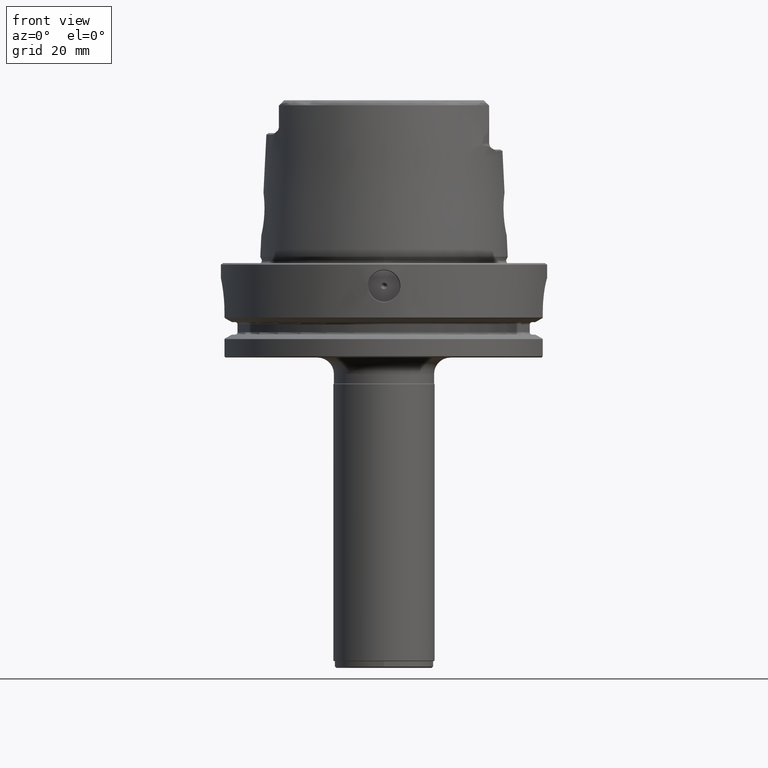
[diagram: clean part render]
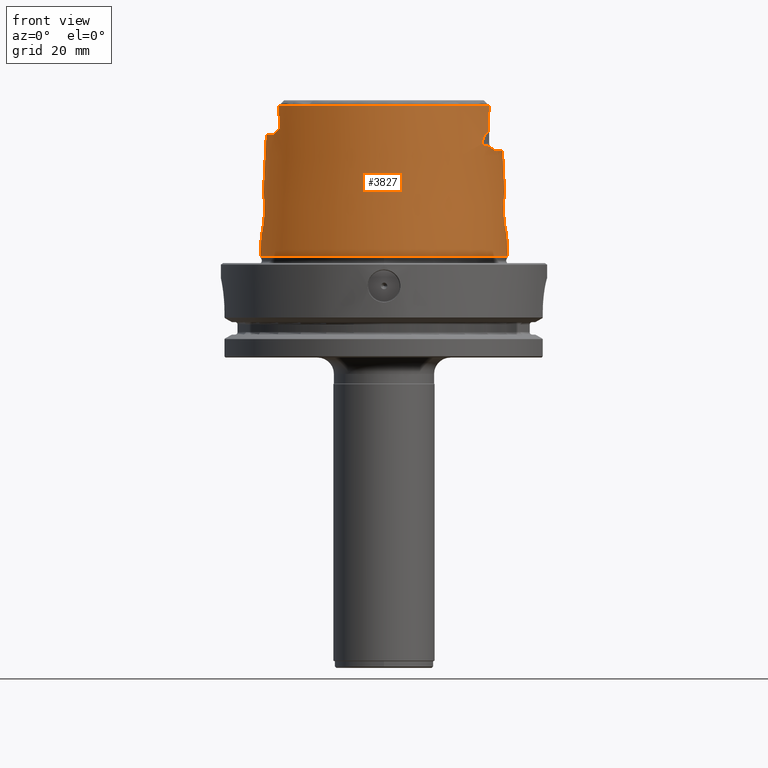
[diagram: same view with one face highlighted and labeled with its STEP entity id]
A machine part, front view. The second image highlights one B-rep face of the part: STEP entity #3827.
In plain terms, the highlighted conical surface has half-angle 2.868 deg.
Its self-contained STEP definition (entity closure, byte-faithful):
#1525=EDGE_CURVE('NONE',#2463,#3897,#4390,.T.);
#1549=EDGE_CURVE('NONE',#2049,#3999,#4416,.T.);
#1623=VERTEX_POINT('NONE',#4495);
#1697=VERTEX_POINT('NONE',#4577);
#1803=EDGE_CURVE('NONE',#2331,#2967,#4690,.T.);
#1965=EDGE_CURVE('NONE',#3629,#2661,#4874,.T.);
#2049=VERTEX_POINT('NONE',#4967);
#2081=EDGE_CURVE('NONE',#4185,#2661,#5000,.F.);
#2093=EDGE_CURVE('NONE',#3897,#3511,#5012,.T.);
#2109=EDGE_CURVE('NONE',#3629,#2875,#5029,.T.);
#2115=EDGE_CURVE('NONE',#2141,#2495,#5035,.T.);
#2141=VERTEX_POINT('NONE',#5065);
#2201=EDGE_CURVE('NONE',#2905,#2463,#5132,.T.);
#2271=EDGE_CURVE('NONE',#3733,#2759,#5210,.F.);
#2331=VERTEX_POINT('NONE',#5278);
#2463=VERTEX_POINT('NONE',#5424);
#2481=EDGE_CURVE('NONE',#3423,#2891,#5444,.T.);
#2495=VERTEX_POINT('NONE',#5458);
#2567=VERTEX_POINT('NONE',#5537);
#2573=VERTEX_POINT('NONE',#5543);
#2597=EDGE_CURVE('NONE',#3549,#2331,#5572,.F.);
#2659=VERTEX_POINT('NONE',#5640);
#2661=VERTEX_POINT('NONE',#5642);
#2695=EDGE_CURVE('NONE',#3999,#2567,#5679,.F.);
#2759=VERTEX_POINT('NONE',#5748);
#2821=EDGE_CURVE('NONE',#1697,#2495,#5817,.F.);
#2875=VERTEX_POINT('NONE',#5877);
#2889=EDGE_CURVE('NONE',#2659,#3577,#5891,.F.);
#2891=VERTEX_POINT('NONE',#5893);
#2905=VERTEX_POINT('NONE',#5909);
#2931=EDGE_CURVE('NONE',#3577,#1623,#5937,.T.);
#2967=VERTEX_POINT('',#5976);
#3017=EDGE_CURVE('NONE',#2659,#3733,#6029,.T.);
#3081=EDGE_CURVE('NONE',#1697,#4185,#6100,.F.);
#3131=EDGE_CURVE('NONE',#2759,#3511,#6156,.T.);
#3191=EDGE_CURVE('NONE',#2875,#2573,#6220,.T.);
#3265=EDGE_CURVE('NONE',#2049,#1623,#6303,.T.);
#3345=EDGE_CURVE('NONE',#3549,#2905,#6393,.T.);
#3423=VERTEX_POINT('NONE',#6482);
#3469=EDGE_CURVE('NONE',#2967,#2141,#6533,.T.);
#3511=VERTEX_POINT('NONE',#6579);
#3549=VERTEX_POINT('NONE',#6622);
#3577=VERTEX_POINT('NONE',#6652);
#3629=VERTEX_POINT('NONE',#6706);
#3733=VERTEX_POINT('NONE',#6821);
#3827=ADVANCED_FACE('NONE',(#6925),#6926,.T.);
#3897=VERTEX_POINT('NONE',#7001);
#3999=VERTEX_POINT('NONE',#7111);
#4127=EDGE_CURVE('NONE',#2573,#3423,#7252,.T.);
#4185=VERTEX_POINT('NONE',#7311);
#4217=EDGE_CURVE('NONE',#2567,#2891,#7349,.F.);
#4390=B_SPLINE_CURVE_WITH_KNOTS('',3,(#7650,#7651,#7652,#7653,#7654,#7655,#7656,#7657,#7658,#7659,#7660,#7661),.UNSPECIFIED.,.F.,.F.,(4,2,2,2,2,4),(0.0208417924711951,0.0221453250727731,0.0227970913735621,0.0234488576743511,0.0247523902759291,0.026055922877507),.UNSPECIFIED.);
#4416=CIRCLE('',#7736,36.2856620688635);
#4495=CARTESIAN_POINT('',(36.9285296284127,-2.93039099150789E-011,21.5362886168837));
#4577=CARTESIAN_POINT('',(-32.2196727564462,-15.1179594647321,48.25));
#4690=B_SPLINE_CURVE_WITH_KNOTS('',3,(#8401,#8402,#8403,#8404,#8405,#8406,#8407,#8408,#8409,#8410,#8411,#8412,#8413,#8414),.UNSPECIFIED.,.F.,.F.,(4,2,2,2,2,2,4),(5.0052763801595,5.83948911018609,6.67370184021267,7.50791457023926,8.34212730026584,10.010552760319,11.6789782203722),.UNSPECIFIED.);
#4874=B_SPLINE_CURVE_WITH_KNOTS('',3,(#8770,#8771,#8772,#8773,#8774,#8775,#8776,#8777,#8778,#8779,#8780,#8781,#8782,#8783,#8784,#8785,#8786,#8787,#8788,#8789,#8790,#8791),.UNSPECIFIED.,.F.,.F.,(4,2,2,2,2,2,2,2,2,2,4),(0.0,1.58306505567605,3.16613011135211,4.74919516702816,5.54072769486619,6.33226022270421,7.12379275054224,7.91532527838027,9.49839033405633,11.0814553897324,12.6645204454084),.UNSPECIFIED.);
#4967=CARTESIAN_POINT('',(36.2856620688635,0.0,34.3679251054852));
#5000=CIRCLE('',#9002,35.5860815135478);
#5012=LINE('',#9028,#9029);
#5029=B_SPLINE_CURVE_WITH_KNOTS('',3,(#9049,#9050,#9051,#9052,#9053,#9054,#9055,#9056,#9057,#9058,#9059,#9060,#9061,#9062,#9063,#9064,#9065,#9066,#9067,#9068,#9069,#9070,#9071,#9072,#9073,#9074,#9075,#9076,#9077,#9078,#9079,#9080,#9081,#9082,#9083,#9084,#9085,#9086,#9087,#9088,#9089,#9090,#9091,#9092,#9093,#9094),.UNSPECIFIED.,.F.,.F.,(4,2,2,2,2,2,2,2,2,2,2,2,2,2,2,2,2,2,2,2,2,2,4),(0.0,2.34415703240258,4.68831406480516,7.03247109720775,8.20454961340904,8.79058887150968,9.37662812961033,9.84126244311746,10.073579599871,10.3058967566246,10.4645881431318,10.5439338363854,10.623279529639,10.7026252228926,10.7819709161462,10.9406623026534,11.172979459407,11.4052966161606,11.8699309296677,12.4559701877684,13.042009445869,14.2140879620703,16.5582449944729),.UNSPECIFIED.);
#5035=B_SPLINE_CURVE_WITH_KNOTS('',3,(#9102,#9103,#9104,#9105,#9106,#9107,#9108,#9109,#9110,#9111,#9112,#9113,#9114,#9115,#9116,#9117,#9118,#9119,#9120,#9121,#9122,#9123),.UNSPECIFIED.,.F.,.F.,(4,2,2,2,2,2,2,2,2,2,4),(-6.84289873590706,-5.89083064943757,-5.02676918724643,-3.92988361325096,-3.15337129964142,-2.81436112317336,-2.6090290980842,-2.38761886029928,-2.0130105718823,-0.919950819094331,-0.0),.UNSPECIFIED.);
#5065=CARTESIAN_POINT('',(-33.2160543196187,-13.8919915979233,39.988325798194));
#5132=B_SPLINE_CURVE_WITH_KNOTS('',3,(#9347,#9348,#9349,#9350,#9351,#9352,#9353,#9354,#9355,#9356,#9357,#9358,#9359,#9360,#9361,#9362,#9363,#9364,#9365,#9366,#9367,#9368,#9369,#9370,#9371,#9372,#9373,#9374,#9375,#9376,#9377,#9378),.UNSPECIFIED.,.F.,.F.,(4,2,2,2,2,2,2,2,2,2,2,2,2,2,2,4),(0.00521470579561418,0.00619139871283799,0.00716809163006179,0.0091214774645094,0.0100981703817332,0.011074863298957,0.0120515562161808,0.0130282491334046,0.0140049420506284,0.0149816349678523,0.0159583278850761,0.0169350208022999,0.0179117137195237,0.0188884066367475,0.0198650995539713,0.0208417924711951),.UNSPECIFIED.);
#5210=CIRCLE('',#9527,37.9111386679071);
#5278=CARTESIAN_POINT('',(-34.1729956588683,-11.434124400822,39.3679251054853));
#5424=CARTESIAN_POINT('',(-37.1952217926338,-4.65909538051471,10.4114435226));
#5444=B_SPLINE_CURVE_WITH_KNOTS('',3,(#9983,#9984,#9985,#9986,#9987,#9988,#9989,#9990,#9991,#9992,#9993,#9994),.UNSPECIFIED.,.F.,.F.,(4,2,2,2,2,4),(-5.67367438398413,-4.67729505599695,-3.849427375931,-2.51016498469842,-1.09435098592964,-0.0),.UNSPECIFIED.);
#5458=CARTESIAN_POINT('',(-32.0309069691676,-16.252598941841,41.7));
#5537=CARTESIAN_POINT('',(33.6037090192422,-13.629373219723,34.8301937741542));
#5543=CARTESIAN_POINT('',(30.0433310036611,-20.1390699565836,36.7));
#5572=CIRCLE('',#10302,36.0351610668595);
#5640=CARTESIAN_POINT('',(37.5801911872421,2.65153614143268E-008,8.52912390264792));
#5642=CARTESIAN_POINT('',(32.1251868888049,-15.3082188659629,48.3315529895861));
#5679=B_SPLINE_CURVE_WITH_KNOTS('',3,(#10593,#10594,#10595,#10596,#10597,#10598,#10599,#10600,#10601,#10602,#10603,#10604,#10605,#10606),.UNSPECIFIED.,.F.,.F.,(4,2,2,2,2,2,4),(1.60499076718692,3.20998153437384,4.81497230156076,5.61746768515421,6.41996306874767,7.22245845234114,8.02495383593461),.UNSPECIFIED.);
#5748=CARTESIAN_POINT('',(-4.64277546216839E-015,-37.9111386679071,1.92341218857392));
#5817=B_SPLINE_CURVE_WITH_KNOTS('',3,(#10942,#10943,#10944,#10945,#10946,#10947,#10948,#10949,#10950,#10951,#10952,#10953,#10954,#10955,#10956,#10957),.UNSPECIFIED.,.F.,.F.,(4,2,2,2,2,2,2,4),(11.4052966161605,11.8699309296677,12.4559701877683,13.042009445869,14.2140879620703,16.5582449944728,18.9024020268754,21.246559059278),.UNSPECIFIED.);
#5877=CARTESIAN_POINT('',(31.6308064128983,-17.2237230750798,39.746973103506));
#5891=B_SPLINE_CURVE_WITH_KNOTS('',3,(#11050,#11051,#11052,#11053,#11054,#11055,#11056,#11057,#11058,#11059,#11060,#11061,#11062,#11063),.UNSPECIFIED.,.F.,.F.,(4,2,2,2,2,2,4),(0.0,0.629890351752867,1.68948931811184,4.16776439677398,6.17088583353832,6.61218044993934,7.04899958202409),.UNSPECIFIED.);
#5893=CARTESIAN_POINT('',(33.5871537530909,-13.6679057063271,34.846852915629));
#5909=CARTESIAN_POINT('',(-36.9285242983376,2.27392948830914E-011,21.5363950051821));
#5937=B_SPLINE_CURVE_WITH_KNOTS('',3,(#11133,#11134,#11135,#11136,#11137,#11138,#11139,#11140,#11141,#11142,#11143,#11144,#11145,#11146,#11147,#11148,#11149,#11150,#11151,#11152,#11153,#11154,#11155,#11156),.UNSPECIFIED.,.F.,.F.,(4,2,2,2,2,2,2,2,2,2,2,4),(-17.6411342288842,-15.4290898218257,-13.4580118250188,-11.3131156365418,-10.0994296296833,-8.87072651096078,-7.60499552356087,-5.06276487883739,-2.42908025110348,-0.989810984298572,-0.654223287868975,-0.0),.UNSPECIFIED.);
#5976=CARTESIAN_POINT('',(-33.3655922804173,-13.5498880853482,39.830754487126));
#6029=LINE('',#11385,#11386);
#6100=B_SPLINE_CURVE_WITH_KNOTS('',3,(#11718,#11719,#11720,#11721,#11722,#11723,#11724,#11725,#11726,#11727,#11728,#11729,#11730,#11731,#11732,#11733,#11734,#11735,#11736,#11737,#11738,#11739),.UNSPECIFIED.,.F.,.F.,(4,2,2,2,2,2,2,2,2,2,4),(0.0,1.58306505567606,3.16613011135212,4.74919516702817,5.5407276948662,6.33226022270423,7.12379275054226,7.91532527838029,9.49839033405634,11.0814553897324,12.6645204454084),.UNSPECIFIED.);
#6156=CIRCLE('',#11982,37.9111386679071);
#6220=(B_SPLINE_CURVE(2,(#12159,#12160,#12161),.UNSPECIFIED.,.F.,.F.)B_SPLINE_CURVE_WITH_KNOTS((3,3),(5.84554102192054,10.7629590125051),.UNSPECIFIED.)RATIONAL_B_SPLINE_CURVE((1.00299734066661,1.00299734066661,1.0008762416997))BOUNDED_CURVE()REPRESENTATION_ITEM('')GEOMETRIC_REPRESENTATION_ITEM()CURVE());
#6303=LINE('',#12353,#12354);
#6393=LINE('',#12547,#12548);
#6482=CARTESIAN_POINT('',(31.801730307811,-17.3167951831525,35.8623347892126));
#6533=B_SPLINE_CURVE_WITH_KNOTS('',3,(#12870,#12871,#12872,#12873,#12874,#12875,#12876,#12877,#12878,#12879,#12880,#12881,#12882,#12883),.UNSPECIFIED.,.F.,.F.,(4,2,2,2,2,2,4),(5.0052763801595,5.83948911018609,6.67370184021267,7.50791457023926,8.34212730026584,10.010552760319,11.6789782203722),.UNSPECIFIED.);
#6579=CARTESIAN_POINT('',(-37.9111386679071,-4.64277546216839E-015,1.92341218857392));
#6622=CARTESIAN_POINT('',(-36.0351610668595,-4.41303446572888E-015,39.3679251054852));
#6652=CARTESIAN_POINT('',(37.195340900871,-4.65836910333465,10.410886171705));
#6706=CARTESIAN_POINT('',(32.2196727564462,-15.1179594647321,48.25));
#6821=CARTESIAN_POINT('',(37.9111386679071,0.0,1.92341218857392));
#6925=FACE_OUTER_BOUND('',#13908,.T.);
#6926=CONICAL_SURFACE('',#13909,35.5024919839679,0.0500583457465974);
#7001=CARTESIAN_POINT('',(-37.5801869682553,-3.07468724688575E-014,8.52920811362393));
#7111=CARTESIAN_POINT('',(34.4105516847215,-11.513609535192,34.3679251054854));
#7252=B_SPLINE_CURVE_WITH_KNOTS('',3,(#14842,#14843,#14844,#14845,#14846,#14847,#14848,#14849,#14850,#14851,#14852,#14853,#14854,#14855,#14856,#14857,#14858,#14859,#14860,#14861,#14862,#14863,#14864,#14865,#14866,#14867,#14868,#14869,#14870,#14871,#14872,#14873,#14874,#14875,#14876,#14877,#14878,#14879,#14880),.UNSPECIFIED.,.F.,.F.,(4,2,2,2,2,2,2,2,2,3,2,2,2,2,2,2,2,2,4),(-5.43231215689413,-4.39312295345098,-3.35393375000782,-2.31474454656467,-1.27555534312152,-0.565551517892807,-0.300129038584641,-0.150064519292322,-0.0750322596461608,0.0,0.0748138199023548,0.14962763980471,0.299255279609419,0.564005836940279,1.27366500317539,2.31450828041214,3.35535155764889,4.39619483488565,5.4370381121224),.UNSPECIFIED.);
#7311=CARTESIAN_POINT('',(-32.125186888805,-15.3082188659629,48.3315529895861));
#7349=B_SPLINE_CURVE_WITH_KNOTS('',3,(#15150,#15151,#15152,#15153,#15154,#15155,#15156,#15157,#15158,#15159,#15160,#15161,#15162,#15163,#15164,#15165,#15166,#15167,#15168,#15169,#15170,#15171),.UNSPECIFIED.,.F.,.F.,(4,2,2,2,2,2,2,2,2,2,4),(0.0,1.61176026456654,3.22352052913309,4.83528079369963,5.6411609259829,6.44704105826617,7.25292119054944,8.05880132283271,9.67056158739925,11.2823218519658,12.8940821165323),.UNSPECIFIED.);
#7650=CARTESIAN_POINT('',(-37.1952217926338,-4.65909538051471,10.4114435226));
#7651=CARTESIAN_POINT('',(-37.2486388249857,-4.35250267938216,10.1141066038703));
#7652=CARTESIAN_POINT('',(-37.2998989822701,-4.01930626070039,9.84880535737677));
#7653=CARTESIAN_POINT('',(-37.3704227943637,-3.47972451129225,9.49817548600181));
#7654=CARTESIAN_POINT('',(-37.3929679691485,-3.29216368169054,9.3887824123342));
#7655=CARTESIAN_POINT('',(-37.4346066111714,-2.91032994060368,9.19009814341007));
#7656=CARTESIAN_POINT('',(-37.4537700046798,-2.71569533342596,9.10043545352474));
#7657=CARTESIAN_POINT('',(-37.5058149607484,-2.12083772034594,8.85984426427034));
#7658=CARTESIAN_POINT('',(-37.5332768841866,-1.70977402423177,8.73701282411846));
#7659=CARTESIAN_POINT('',(-37.5707776768846,-0.857002626764355,8.57031949885367));
#7660=CARTESIAN_POINT('',(-37.5801860767998,-0.428739909303223,8.52922590707623));
#7661=CARTESIAN_POINT('',(-37.5801869682553,-3.07468724688575E-014,8.52920811362393));
#7736=AXIS2_PLACEMENT_3D('',#15502,#15503,#15504);
#8401=CARTESIAN_POINT('',(-34.6503733990783,-9.84761532789534,39.6196985624674));
#8402=CARTESIAN_POINT('',(-34.5797398803428,-10.1110444886116,39.5384284118318));
#8403=CARTESIAN_POINT('',(-34.5045758011916,-10.3757744395605,39.4750758324253));
#8404=CARTESIAN_POINT('',(-34.3453236091409,-10.9054608100818,39.3897994958596));
#8405=CARTESIAN_POINT('',(-34.2612288534249,-11.1704231790359,39.3679251054853));
#8406=CARTESIAN_POINT('',(-34.0847624643117,-11.6978256226081,39.3679251054853));
#8407=CARTESIAN_POINT('',(-33.9924651882287,-11.9600434666393,39.3897994958596));
#8408=CARTESIAN_POINT('',(-33.8008764285146,-12.4789101729718,39.4750758324253));
#8409=CARTESIAN_POINT('',(-33.7015866696454,-12.7355677844072,39.5384284118318));
#8410=CARTESIAN_POINT('',(-33.3952110990648,-13.4942443689365,39.7822388637388));
#8411=CARTESIAN_POINT('',(-33.1794902350043,-13.9851641620033,40.0164818746948));
#8412=CARTESIAN_POINT('',(-32.7356744031813,-14.9279621567223,40.569699883608));
#8413=CARTESIAN_POINT('',(-32.5073236092114,-15.3804658351456,40.8884518929488));
#8414=CARTESIAN_POINT('',(-32.2784021736174,-15.8097447069369,41.2230021294701));
#8770=CARTESIAN_POINT('',(33.7339762751437,-11.6946010568866,45.9865));
#8771=CARTESIAN_POINT('',(33.5803302628998,-12.0897501399859,46.3006736808993));
#8772=CARTESIAN_POINT('',(33.4106393354955,-12.5067332668701,46.6223357399298));
#8773=CARTESIAN_POINT('',(33.042878371019,-13.3657392767772,47.2421360481048));
#8774=CARTESIAN_POINT('',(32.844869659882,-13.8076668571997,47.5404427522905));
#8775=CARTESIAN_POINT('',(32.4241149747544,-14.7051773373786,48.0649526217705));
#8776=CARTESIAN_POINT('',(32.201251402634,-15.161110632227,48.291019016915));
#8777=CARTESIAN_POINT('',(31.8507832689869,-15.8511196219706,48.5293915229892));
#8778=CARTESIAN_POINT('',(31.7312337298668,-16.0822294155288,48.5919670123731));
#8779=CARTESIAN_POINT('',(31.4874028254348,-16.5454313087874,48.6765473988469));
#8780=CARTESIAN_POINT('',(31.3631169806518,-16.7775357303014,48.6984718827265));
#8781=CARTESIAN_POINT('',(31.1107648324425,-17.240972230824,48.6984718827265));
#8782=CARTESIAN_POINT('',(30.9832387270621,-17.4713122537169,48.6765473988469));
#8783=CARTESIAN_POINT('',(30.726459954548,-17.9274637262133,48.5919670123731));
#8784=CARTESIAN_POINT('',(30.5971993678541,-18.1532856244204,48.5293915229892));
#8785=CARTESIAN_POINT('',(30.207767898572,-18.8220781553011,48.291019016915));
#8786=CARTESIAN_POINT('',(29.9457176166201,-19.2566733587474,48.0649526217705));
#8787=CARTESIAN_POINT('',(29.4201257437401,-20.097097507764,47.5404427522905));
#8788=CARTESIAN_POINT('',(29.1563536353547,-20.5032153611787,47.2421360481048));
#8789=CARTESIAN_POINT('',(28.634350198565,-21.2782326926165,46.6223357399298));
#8790=CARTESIAN_POINT('',(28.3761656471275,-21.6470289457814,46.3006736808993));
#8791=CARTESIAN_POINT('',(28.1276153020766,-21.9905003724354,45.9865));
#9002=AXIS2_PLACEMENT_3D('',#16133,#16134,#16135);
#9028=CARTESIAN_POINT('',(-35.5024919839679,-4.34780131699209E-015,50.0));
#9029=VECTOR('',#16140,1000.0);
#9049=CARTESIAN_POINT('',(32.2247236023161,-14.8380619118634,50.5135));
#9050=CARTESIAN_POINT('',(32.2256907240325,-14.9289256081434,49.7374159643922));
#9051=CARTESIAN_POINT('',(32.2242624330982,-15.0288203689247,48.9238254194878));
#9052=CARTESIAN_POINT('',(32.2130696003954,-15.2482895070886,47.2631124542076));
#9053=CARTESIAN_POINT('',(32.2033753603093,-15.3677371102914,46.4159728095626));
#9054=CARTESIAN_POINT('',(32.1701934482504,-15.631317904829,44.7301033574888));
#9055=CARTESIAN_POINT('',(32.1471032210817,-15.7746348409423,43.892091042657));
#9056=CARTESIAN_POINT('',(32.0927822846967,-16.0213960027107,42.6733806215703));
#9057=CARTESIAN_POINT('',(32.0713889125366,-16.1089369693729,42.2736933994119));
#9058=CARTESIAN_POINT('',(32.0306149312746,-16.2545341034932,41.6883988868358));
#9059=CARTESIAN_POINT('',(32.0155572968355,-16.3054786677201,41.4957032374411));
#9060=CARTESIAN_POINT('',(31.9810225092506,-16.4147887202822,41.1162134868477));
#9061=CARTESIAN_POINT('',(31.9616212518765,-16.4730203412576,40.9293739360529));
#9062=CARTESIAN_POINT('',(31.9199181859509,-16.5892664236716,40.6016470379574));
#9063=CARTESIAN_POINT('',(31.8971983000735,-16.6500241580358,40.4444132248573));
#9064=CARTESIAN_POINT('',(31.8543625567311,-16.7558774719474,40.2198969165074));
#9065=CARTESIAN_POINT('',(31.8386260189882,-16.7936046173927,40.1470089919297));
#9066=CARTESIAN_POINT('',(31.8031176270881,-16.8753394160091,40.0105839022188));
#9067=CARTESIAN_POINT('',(31.7834435969753,-16.9191824419358,39.9469227398248));
#9068=CARTESIAN_POINT('',(31.7444240027321,-17.002072667545,39.8542178215956));
#9069=CARTESIAN_POINT('',(31.7250950313395,-17.04210726168,39.8167698115671));
#9070=CARTESIAN_POINT('',(31.6920417879065,-17.1077076593979,39.7763394048967));
#9071=CARTESIAN_POINT('',(31.6803349558617,-17.130525915116,39.7654544515662));
#9072=CARTESIAN_POINT('',(31.6560434406159,-17.1769171408401,39.7507603581985));
#9073=CARTESIAN_POINT('',(31.6434546967271,-17.2004949138105,39.746973103506));
#9074=CARTESIAN_POINT('',(31.6181581290695,-17.246951236349,39.746973103506));
#9075=CARTESIAN_POINT('',(31.6051838693672,-17.2703190868303,39.7507603581987));
#9076=CARTESIAN_POINT('',(31.5793966331184,-17.3158958570512,39.7654544515663));
#9077=CARTESIAN_POINT('',(31.5665818255071,-17.3381107938378,39.7763394048966));
#9078=CARTESIAN_POINT('',(31.5294133270813,-17.4014703377673,39.816769811567));
#9079=CARTESIAN_POINT('',(31.506272860764,-17.4394294826637,39.8542178215957));
#9080=CARTESIAN_POINT('',(31.4578185301174,-17.5171822708968,39.9469227398249));
#9081=CARTESIAN_POINT('',(31.4316662645932,-17.5574977442445,40.0105839022188));
#9082=CARTESIAN_POINT('',(31.3822772719369,-17.6316742270716,40.1470089919297));
#9083=CARTESIAN_POINT('',(31.3591257493759,-17.6653637377047,40.2198969165074));
#9084=CARTESIAN_POINT('',(31.2934534095921,-17.758781984108,40.4444132248574));
#9085=CARTESIAN_POINT('',(31.2547457244044,-17.8108339831739,40.6016470379575));
#9086=CARTESIAN_POINT('',(31.1797290017497,-17.9089399906676,40.9293739360529));
#9087=CARTESIAN_POINT('',(31.1413425044177,-17.956833698936,41.1162134868478));
#9088=CARTESIAN_POINT('',(31.0682623901353,-18.0451549083996,41.4957032374412));
#9089=CARTESIAN_POINT('',(31.0336400383194,-18.0854460207436,41.6883988868358));
#9090=CARTESIAN_POINT('',(30.9334647048801,-18.1986977120436,42.273693399412));
#9091=CARTESIAN_POINT('',(30.8715396941237,-18.2641682417448,42.6733806215704));
#9092=CARTESIAN_POINT('',(30.6937386397034,-18.4436915553674,43.8920910426571));
#9093=CARTESIAN_POINT('',(30.5858833029696,-18.5408518821765,44.7301033574889));
#9094=CARTESIAN_POINT('',(30.484183547803,-18.6262985230309,45.5730380835258));
#9102=CARTESIAN_POINT('',(-33.8163611038049,-12.3855902577243,39.8066697986275));
#9103=CARTESIAN_POINT('',(-33.6598706662297,-12.8165455406989,39.7813418429515));
#9104=CARTESIAN_POINT('',(-33.4897259821893,-13.2479492800867,39.8292891836146));
#9105=CARTESIAN_POINT('',(-33.1553662443336,-14.03839111159,40.0176180337631));
#9106=CARTESIAN_POINT('',(-32.9895181874325,-14.4064871271688,40.1506942649248));
#9107=CARTESIAN_POINT('',(-32.6157675931178,-15.1930699233325,40.5188473253215));
#9108=CARTESIAN_POINT('',(-32.4180280991995,-15.5776340639753,40.7620038870649));
#9109=CARTESIAN_POINT('',(-32.1795171461644,-16.0222933880102,41.1263112059934));
#9110=CARTESIAN_POINT('',(-32.1168267428756,-16.1324498467719,41.2513629282608));
#9111=CARTESIAN_POINT('',(-32.0624316996859,-16.2228152178681,41.4076851045293));
#9112=CARTESIAN_POINT('',(-32.0479980487044,-16.2455223107701,41.4597009026633));
#9113=CARTESIAN_POINT('',(-32.0334377031663,-16.2643350669051,41.548954409899));
#9114=CARTESIAN_POINT('',(-32.0300491151502,-16.2672334418799,41.5830460226567));
#9115=CARTESIAN_POINT('',(-32.0278854917605,-16.2634932803523,41.6553539130495));
#9116=CARTESIAN_POINT('',(-32.0295507696801,-16.2561867355025,41.6917727957016));
#9117=CARTESIAN_POINT('',(-32.0399859780211,-16.2250178319587,41.7873861488941));
#9118=CARTESIAN_POINT('',(-32.0535143400659,-16.1913242968282,41.850670479357));
#9119=CARTESIAN_POINT('',(-32.1379967694655,-15.9935654939449,42.1187214209992));
#9120=CARTESIAN_POINT('',(-32.2588266987069,-15.7261604110261,42.3323328743513));
#9121=CARTESIAN_POINT('',(-32.4845979993151,-15.2121819900255,42.6820870256082));
#9122=CARTESIAN_POINT('',(-32.5949934471435,-14.9564837908699,42.8325348390015));
#9123=CARTESIAN_POINT('',(-32.7026638048829,-14.7009654732895,42.9635));
#9347=CARTESIAN_POINT('',(-36.9285242983376,2.27392948830914E-011,21.5363950051821));
#9348=CARTESIAN_POINT('',(-36.9285147742134,-0.322585043516834,21.5365851067046));
#9349=CARTESIAN_POINT('',(-36.9254544992426,-0.642865258560233,21.5133189839065));
#9350=CARTESIAN_POINT('',(-36.9135333182269,-1.27891634284436,21.4208736356383));
#9351=CARTESIAN_POINT('',(-36.9045975446748,-1.5965667471683,21.3511222483454));
#9352=CARTESIAN_POINT('',(-36.8702648124326,-2.5294011651864,21.0740835511538));
#9353=CARTESIAN_POINT('',(-36.8379059418393,-3.11232912928965,20.8056878655316));
#9354=CARTESIAN_POINT('',(-36.7834918757072,-3.92821745386306,20.2764646564867));
#9355=CARTESIAN_POINT('',(-36.7646179245996,-4.18685916876153,20.0804118692924));
#9356=CARTESIAN_POINT('',(-36.7279826121821,-4.66837458129406,19.6566680645168));
#9357=CARTESIAN_POINT('',(-36.7101284426284,-4.89270460581787,19.4278562362392));
#9358=CARTESIAN_POINT('',(-36.6776162273941,-5.30639224035047,18.9339974510275));
#9359=CARTESIAN_POINT('',(-36.6628320905496,-5.4970328923196,18.6674093573033));
#9360=CARTESIAN_POINT('',(-36.6389196056664,-5.83250555675165,18.1163054576183));
#9361=CARTESIAN_POINT('',(-36.6296482348251,-5.97900512211284,17.8302581097273));
#9362=CARTESIAN_POINT('',(-36.617862265488,-6.2303265848342,17.2375244388059));
#9363=CARTESIAN_POINT('',(-36.6153662780847,-6.33576415576879,16.9282319189034));
#9364=CARTESIAN_POINT('',(-36.6187462933809,-6.49852016024882,16.301006683204));
#9365=CARTESIAN_POINT('',(-36.6245443541459,-6.55589768477993,15.9846577313481));
#9366=CARTESIAN_POINT('',(-36.6451549410056,-6.621940127594,15.3464261941594));
#9367=CARTESIAN_POINT('',(-36.6600344064283,-6.6302567148889,15.0245041131926));
#9368=CARTESIAN_POINT('',(-36.6995092885388,-6.59477296365154,14.37474172719));
#9369=CARTESIAN_POINT('',(-36.7235476652287,-6.55179621667163,14.054821603083));
#9370=CARTESIAN_POINT('',(-36.7787708280522,-6.41981856255826,13.427160536593));
#9371=CARTESIAN_POINT('',(-36.8099933866043,-6.33076625894953,13.1188780946788));
#9372=CARTESIAN_POINT('',(-36.8786102693789,-6.10651711529961,12.5133187036147));
#9373=CARTESIAN_POINT('',(-36.9157477739356,-5.97194167247253,12.2186985765092));
#9374=CARTESIAN_POINT('',(-36.9925519588339,-5.66480112337008,11.6578377042905));
#9375=CARTESIAN_POINT('',(-37.0324473943168,-5.49152711263608,11.3896017177381));
#9376=CARTESIAN_POINT('',(-37.1136849453703,-5.104179228592,10.8781456308138));
#9377=CARTESIAN_POINT('',(-37.1551982158594,-4.88881492823152,10.6342280254202));
#9378=CARTESIAN_POINT('',(-37.1952217926338,-4.65909538051471,10.4114435226));
#9527=AXIS2_PLACEMENT_3D('',#16398,#16399,#16400);
#9983=CARTESIAN_POINT('',(30.9522661967315,-18.8322059505749,35.4563899925386));
#9984=CARTESIAN_POINT('',(31.1589655353675,-18.4790027847723,35.5962002864488));
#9985=CARTESIAN_POINT('',(31.3523834306067,-18.134512480044,35.7324272616763));
#9986=CARTESIAN_POINT('',(31.6830149857773,-17.5354634711534,35.8656251520568));
#9987=CARTESIAN_POINT('',(31.8155098072753,-17.2923692700177,35.8785073567843));
#9988=CARTESIAN_POINT('',(32.1888857661442,-16.6018101801224,35.7830557870478));
#9989=CARTESIAN_POINT('',(32.4249120479045,-16.1602169407393,35.6002934158357));
#9990=CARTESIAN_POINT('',(32.9724809457264,-15.0631638256675,35.1832629723362));
#9991=CARTESIAN_POINT('',(33.3072109018234,-14.3517373859816,34.925571050556));
#9992=CARTESIAN_POINT('',(33.8776218051388,-12.9595126432996,34.7633424316689));
#9993=CARTESIAN_POINT('',(34.0439688355262,-12.4967493680256,34.8126681953386));
#9994=CARTESIAN_POINT('',(34.1604261724819,-12.1587327556784,34.8851221703266));
#10302=AXIS2_PLACEMENT_3D('',#16835,#16836,#16837);
#10593=CARTESIAN_POINT('',(32.5906995491911,-15.7527574515484,36.1154928359785));
#10594=CARTESIAN_POINT('',(32.810007981217,-15.3355818273322,35.7980191797133));
#10595=CARTESIAN_POINT('',(33.029039135685,-14.8958797834344,35.4962905409484));
#10596=CARTESIAN_POINT('',(33.4551672369239,-13.9804079938418,34.9743658943531));
#10597=CARTESIAN_POINT('',(33.6625281684807,-13.5039628429025,34.754412190217));
#10598=CARTESIAN_POINT('',(33.9571295291027,-12.769334080357,34.5264551047523));
#10599=CARTESIAN_POINT('',(34.0526207259539,-12.5210928582956,34.4674324760274));
#10600=CARTESIAN_POINT('',(34.2368933570909,-12.0200716859099,34.3881469732236));
#10601=CARTESIAN_POINT('',(34.3256731774023,-11.7672846536772,34.3679251054854));
#10602=CARTESIAN_POINT('',(34.4954301920408,-11.2599344167069,34.3679251054854));
#10603=CARTESIAN_POINT('',(34.5766585086202,-11.0046206866703,34.3881469732236));
#10604=CARTESIAN_POINT('',(34.7310139103232,-10.4935893493435,34.4674324760274));
#10605=CARTESIAN_POINT('',(34.8041465464232,-10.2378670575039,34.5264551047523));
#10606=CARTESIAN_POINT('',(34.8730903857027,-9.98320167712583,34.6024407999072));
#10942=CARTESIAN_POINT('',(-31.8686411378272,-16.7205930340078,40.2947356859755));
#10943=CARTESIAN_POINT('',(-31.8971983000735,-16.6500241580358,40.4444132248574));
#10944=CARTESIAN_POINT('',(-31.9199181859509,-16.5892664236716,40.6016470379575));
#10945=CARTESIAN_POINT('',(-31.9616212518765,-16.4730203412576,40.9293739360529));
#10946=CARTESIAN_POINT('',(-31.9810225092507,-16.4147887202822,41.1162134868478));
#10947=CARTESIAN_POINT('',(-32.0155572968355,-16.3054786677201,41.4957032374412));
#10948=CARTESIAN_POINT('',(-32.0306149312746,-16.2545341034932,41.6883988868358));
#10949=CARTESIAN_POINT('',(-32.0713889125366,-16.1089369693729,42.2736933994119));
#10950=CARTESIAN_POINT('',(-32.0927822846967,-16.0213960027106,42.6733806215704));
#10951=CARTESIAN_POINT('',(-32.1471032210817,-15.7746348409423,43.8920910426571));
#10952=CARTESIAN_POINT('',(-32.1701934482504,-15.631317904829,44.7301033574889));
#10953=CARTESIAN_POINT('',(-32.2033753603093,-15.3677371102914,46.4159728095627));
#10954=CARTESIAN_POINT('',(-32.2130696003953,-15.2482895070886,47.2631124542077));
#10955=CARTESIAN_POINT('',(-32.2242624330982,-15.0288203689247,48.9238254194878));
#10956=CARTESIAN_POINT('',(-32.2256907240325,-14.9289256081434,49.7374159643922));
#10957=CARTESIAN_POINT('',(-32.2247236023161,-14.8380619118634,50.5135));
#11050=CARTESIAN_POINT('',(37.0688012363388,-5.31809143237596,11.160886171705));
#11051=CARTESIAN_POINT('',(37.0951569537268,-5.19319616973812,10.9941792428962));
#11052=CARTESIAN_POINT('',(37.1217025601764,-5.06025296253878,10.8335797638743));
#11053=CARTESIAN_POINT('',(37.1924788665782,-4.68312967124158,10.4213610338398));
#11054=CARTESIAN_POINT('',(37.2363285692048,-4.42489129435514,10.1832674004332));
#11055=CARTESIAN_POINT('',(37.3730894591823,-3.52038138867501,9.46978307616161));
#11056=CARTESIAN_POINT('',(37.4559477173731,-2.79693213270157,9.08723865148418));
#11057=CARTESIAN_POINT('',(37.5536068809776,-1.39842296672377,8.64448585693467));
#11058=CARTESIAN_POINT('',(37.578055986815,-0.746800531045384,8.53843316683009));
#11059=CARTESIAN_POINT('',(37.5804962343574,0.0555279745684775,8.52778799445345));
#11060=CARTESIAN_POINT('',(37.5798627541859,0.200150099296617,8.53059662793368));
#11061=CARTESIAN_POINT('',(37.5764694921086,0.48794350822894,8.54562094339463));
#11062=CARTESIAN_POINT('',(37.5737333474163,0.630800622701492,8.55772519148776));
#11063=CARTESIAN_POINT('',(37.5699678132039,0.773143429668704,8.57441411531482));
#11133=CARTESIAN_POINT('',(37.3377381728013,-3.72901933632514,9.66088617170497));
#11134=CARTESIAN_POINT('',(37.2756098554973,-4.1944272463635,9.97165008115049));
#11135=CARTESIAN_POINT('',(37.1936579293023,-4.70305191086631,10.3934706143772));
#11136=CARTESIAN_POINT('',(37.0147150012314,-5.58917936820387,11.4889803579278));
#11137=CARTESIAN_POINT('',(36.9311820786949,-5.92621107652187,12.0701085396141));
#11138=CARTESIAN_POINT('',(36.7803009573681,-6.43532568388207,13.3626506196867));
#11139=CARTESIAN_POINT('',(36.7152880059506,-6.5902382892534,14.0809506970854));
#11140=CARTESIAN_POINT('',(36.6497410076261,-6.63262407099091,15.2182481095697));
#11141=CARTESIAN_POINT('',(36.6338838356425,-6.60597734276853,15.6252129213796));
#11142=CARTESIAN_POINT('',(36.6161852711504,-6.47515263642218,16.4320616534702));
#11143=CARTESIAN_POINT('',(36.6145060770072,-6.37002164838146,16.831786234564));
#11144=CARTESIAN_POINT('',(36.6233366015812,-6.08376361246177,17.6161869422846));
#11145=CARTESIAN_POINT('',(36.634209582244,-5.90028775323406,18.0004641021514));
#11146=CARTESIAN_POINT('',(36.6807062908327,-5.24342040979507,19.0920141471211));
#11147=CARTESIAN_POINT('',(36.7297310747322,-4.67526182642856,19.7139339857104));
#11148=CARTESIAN_POINT('',(36.8283930401346,-3.29185518476927,20.7386139826581));
#11149=CARTESIAN_POINT('',(36.87542579078,-2.48828182833036,21.118248429873));
#11150=CARTESIAN_POINT('',(36.9171706818242,-1.17207230052159,21.4502368771745));
#11151=CARTESIAN_POINT('',(36.926034136713,-0.695507234109717,21.5175750175267));
#11152=CARTESIAN_POINT('',(36.9285433321184,-0.103873920306435,21.536481070074));
#11153=CARTESIAN_POINT('',(36.9286514518808,0.00797736049252623,21.5372205283683));
#11154=CARTESIAN_POINT('',(36.927888995831,0.337864169491229,21.5310740827673));
#11155=CARTESIAN_POINT('',(36.9259880326088,0.555542770138407,21.5162879502002));
#11156=CARTESIAN_POINT('',(36.9227308745388,0.772111244612465,21.4909119084424));
#11385=CARTESIAN_POINT('',(35.5024919839679,0.0,50.0));
#11386=VECTOR('',#17279,1000.0);
#11718=CARTESIAN_POINT('',(-28.1276153020766,-21.9905003724354,45.9865));
#11719=CARTESIAN_POINT('',(-28.3761656471275,-21.6470289457814,46.3006736808993));
#11720=CARTESIAN_POINT('',(-28.634350198565,-21.2782326926165,46.6223357399298));
#11721=CARTESIAN_POINT('',(-29.1563536353547,-20.5032153611787,47.2421360481048));
#11722=CARTESIAN_POINT('',(-29.4201257437401,-20.097097507764,47.5404427522905));
#11723=CARTESIAN_POINT('',(-29.9457176166201,-19.2566733587474,48.0649526217705));
#11724=CARTESIAN_POINT('',(-30.207767898572,-18.8220781553012,48.291019016915));
#11725=CARTESIAN_POINT('',(-30.5971993678541,-18.1532856244205,48.5293915229892));
#11726=CARTESIAN_POINT('',(-30.726459954548,-17.9274637262133,48.5919670123731));
#11727=CARTESIAN_POINT('',(-30.9832387270621,-17.4713122537169,48.6765473988469));
#11728=CARTESIAN_POINT('',(-31.1107648324425,-17.240972230824,48.6984718827265));
#11729=CARTESIAN_POINT('',(-31.3631169806518,-16.7775357303014,48.6984718827265));
#11730=CARTESIAN_POINT('',(-31.4874028254348,-16.5454313087874,48.6765473988469));
#11731=CARTESIAN_POINT('',(-31.7312337298668,-16.0822294155288,48.5919670123731));
#11732=CARTESIAN_POINT('',(-31.8507832689869,-15.8511196219706,48.5293915229892));
#11733=CARTESIAN_POINT('',(-32.201251402634,-15.161110632227,48.291019016915));
#11734=CARTESIAN_POINT('',(-32.4241149747544,-14.7051773373786,48.0649526217705));
#11735=CARTESIAN_POINT('',(-32.844869659882,-13.8076668571997,47.5404427522905));
#11736=CARTESIAN_POINT('',(-33.042878371019,-13.3657392767772,47.2421360481048));
#11737=CARTESIAN_POINT('',(-33.4106393354955,-12.5067332668701,46.6223357399298));
#11738=CARTESIAN_POINT('',(-33.5803302628998,-12.0897501399859,46.3006736808993));
#11739=CARTESIAN_POINT('',(-33.7339762751437,-11.6946010568866,45.9865));
#11982=AXIS2_PLACEMENT_3D('',#17415,#17416,#17417);
#12159=CARTESIAN_POINT('',(31.6308064128983,-17.2237230750798,39.7469731035058));
#12160=CARTESIAN_POINT('',(30.8387472732728,-18.6783138858964,39.7469731035058));
#12161=CARTESIAN_POINT('',(30.043331003659,-20.1390699565873,36.6999999999922));
#12353=CARTESIAN_POINT('',(35.5024919839679,0.0,50.0));
#12354=VECTOR('',#17583,1000.0);
#12547=CARTESIAN_POINT('',(-35.5024919839679,-4.34780131699209E-015,50.0));
#12548=VECTOR('',#17685,1000.0);
#12870=CARTESIAN_POINT('',(-34.6503733990783,-9.84761532789534,39.6196985624674));
#12871=CARTESIAN_POINT('',(-34.5797398803428,-10.1110444886116,39.5384284118318));
#12872=CARTESIAN_POINT('',(-34.5045758011916,-10.3757744395605,39.4750758324253));
#12873=CARTESIAN_POINT('',(-34.3453236091409,-10.9054608100818,39.3897994958596));
#12874=CARTESIAN_POINT('',(-34.2612288534249,-11.1704231790359,39.3679251054853));
#12875=CARTESIAN_POINT('',(-34.0847624643117,-11.6978256226081,39.3679251054853));
#12876=CARTESIAN_POINT('',(-33.9924651882287,-11.9600434666393,39.3897994958596));
#12877=CARTESIAN_POINT('',(-33.8008764285146,-12.4789101729718,39.4750758324253));
#12878=CARTESIAN_POINT('',(-33.7015866696454,-12.7355677844072,39.5384284118318));
#12879=CARTESIAN_POINT('',(-33.3952110990648,-13.4942443689365,39.7822388637388));
#12880=CARTESIAN_POINT('',(-33.1794902350043,-13.9851641620033,40.0164818746948));
#12881=CARTESIAN_POINT('',(-32.7356744031813,-14.9279621567223,40.569699883608));
#12882=CARTESIAN_POINT('',(-32.5073236092114,-15.3804658351456,40.8884518929488));
#12883=CARTESIAN_POINT('',(-32.2784021736174,-15.8097447069369,41.2230021294701));
#13908=EDGE_LOOP('',(#18302,#18303,#18304,#18305,#18306,#18307,#18308,#18309,#18310,#18311,#18312,#18313,#18314,#18315,#18316,#18317,#18318,#18319,#18320,#18321,#18322,#18323,#18324,#18325,#18326));
#13909=AXIS2_PLACEMENT_3D('',#18327,#18328,#18329);
#14842=CARTESIAN_POINT('',(32.7375489242368,-15.3198937745949,37.1796182043583));
#14843=CARTESIAN_POINT('',(32.5904531680332,-15.6263561087127,37.2462075653859));
#14844=CARTESIAN_POINT('',(32.4237858572188,-15.9649464583311,37.2924114751892));
#14845=CARTESIAN_POINT('',(32.0792387694258,-16.6400700015395,37.3509352300598));
#14846=CARTESIAN_POINT('',(31.9013546443824,-16.9766214365931,37.3630188052823));
#14847=CARTESIAN_POINT('',(31.5700459253319,-17.5850591076766,37.3630188052823));
#14848=CARTESIAN_POINT('',(31.3838685870463,-17.9170946917455,37.3509352300598));
#14849=CARTESIAN_POINT('',(31.0037278853064,-18.5728366693415,37.2924114751892));
#14850=CARTESIAN_POINT('',(30.8097515585647,-18.8965566131396,37.2462075653859));
#14851=CARTESIAN_POINT('',(30.5107951615265,-19.3844357237787,37.1341224458453));
#14852=CARTESIAN_POINT('',(30.3648641844985,-19.618372274436,37.0660437465003));
#14853=CARTESIAN_POINT('',(30.2053777607431,-19.8732874905081,36.9423517927262));
#14854=CARTESIAN_POINT('',(30.1547496565556,-19.9542091135091,36.8958723262834));
#14855=CARTESIAN_POINT('',(30.0950663378636,-20.0511489903868,36.8169951350487));
#14856=CARTESIAN_POINT('',(30.0730633455898,-20.0872718123513,36.7820285197066));
#14857=CARTESIAN_POINT('',(30.048988961288,-20.1287065436507,36.7214029467179));
#14858=CARTESIAN_POINT('',(30.0424520808913,-20.140398538469,36.6998298478793));
#14859=CARTESIAN_POINT('',(30.033929612106,-20.1572001497486,36.6542852141775));
#14860=CARTESIAN_POINT('',(30.0319430878513,-20.1623121583695,36.630314736957));
#14861=CARTESIAN_POINT('',(30.032982120007,-20.1630097253103,36.6053353136462));
#14862=CARTESIAN_POINT('',(30.0340181272516,-20.16370526144,36.5804286123732));
#14863=CARTESIAN_POINT('',(30.0379817475737,-20.159951179031,36.556527469421));
#14864=CARTESIAN_POINT('',(30.0502714574002,-20.1457101188509,36.5111552353928));
#14865=CARTESIAN_POINT('',(30.0585980857451,-20.1352211911831,36.4896849023126));
#14866=CARTESIAN_POINT('',(30.0877172956486,-20.0971373139208,36.4294295759862));
#14867=CARTESIAN_POINT('',(30.1126564340427,-20.0628978646987,36.394783246771));
#14868=CARTESIAN_POINT('',(30.1789747275744,-19.970173511273,36.3167903736744));
#14869=CARTESIAN_POINT('',(30.2335011337899,-19.891728202689,36.2710950587775));
#14870=CARTESIAN_POINT('',(30.4035579067577,-19.6430927562362,36.1496115034228));
#14871=CARTESIAN_POINT('',(30.5553250338557,-19.4125042968928,36.0834731431053));
#14872=CARTESIAN_POINT('',(30.8642323446555,-18.9295869526582,35.9746599431567));
#14873=CARTESIAN_POINT('',(31.0625064498555,-18.6075288553332,35.9301805027342));
#14874=CARTESIAN_POINT('',(31.4483001673093,-17.9534971894547,35.873896056951));
#14875=CARTESIAN_POINT('',(31.6358122768253,-17.621498242743,35.8623347892126));
#14876=CARTESIAN_POINT('',(31.9676483387965,-17.0120921235622,35.8623347892126));
#14877=CARTESIAN_POINT('',(32.1447774320145,-16.6744393786178,35.8738960569509));
#14878=CARTESIAN_POINT('',(32.4848205123298,-15.9954954074917,35.9301805027341));
#14879=CARTESIAN_POINT('',(32.6477598877755,-15.6541967131273,35.9746599431567));
#14880=CARTESIAN_POINT('',(32.7892909087027,-15.3441070016614,36.0393599314735));
#15150=CARTESIAN_POINT('',(31.928506089756,-16.9489712207167,37.110352915629));
#15151=CARTESIAN_POINT('',(32.1419917781063,-16.5819843282174,36.7811330490647));
#15152=CARTESIAN_POINT('',(32.3625999535541,-16.1861003587892,36.4460747795381));
#15153=CARTESIAN_POINT('',(32.8031923055745,-15.3490830328426,35.8075168715425));
#15154=CARTESIAN_POINT('',(33.0231852369505,-14.9079745979127,35.5039906072186));
#15155=CARTESIAN_POINT('',(33.4511489629638,-13.989511066829,34.9787694345536));
#15156=CARTESIAN_POINT('',(33.6593831692669,-13.5114848069717,34.7573150559372));
#15157=CARTESIAN_POINT('',(33.955222385688,-12.7742472520615,34.5277002729672));
#15158=CARTESIAN_POINT('',(34.0511143404217,-12.5250957904951,34.4682263579195));
#15159=CARTESIAN_POINT('',(34.2361615503147,-12.0221530870411,34.3883178528679));
#15160=CARTESIAN_POINT('',(34.3253151785622,-11.768354599427,34.3679251054854));
#15161=CARTESIAN_POINT('',(34.4957881908808,-11.258864470957,34.3679251054854));
#15162=CARTESIAN_POINT('',(34.5773266802122,-11.0025179935042,34.3883178528679));
#15163=CARTESIAN_POINT('',(34.7322198820798,-10.4894859001007,34.4682263579195));
#15164=CARTESIAN_POINT('',(34.8055802545126,-10.2327954765554,34.5277002729672));
#15165=CARTESIAN_POINT('',(35.012993187191,-9.46597090098394,34.7573150559372));
#15166=CARTESIAN_POINT('',(35.1343733402741,-8.95888368143952,34.9787694345536));
#15167=CARTESIAN_POINT('',(35.3453314628911,-7.96781109115366,35.5039906072185));
#15168=CARTESIAN_POINT('',(35.4351029789148,-7.48313118014798,35.8075168715425));
#15169=CARTESIAN_POINT('',(35.5869598825292,-6.54950432459043,36.4460747795381));
#15170=CARTESIAN_POINT('',(35.6490232800369,-6.10057201453191,36.7811330490647));
#15171=CARTESIAN_POINT('',(35.6993842536394,-5.67900435598289,37.110352915629));
#15502=CARTESIAN_POINT('',(0.0,0.0,34.3679251054852));
#15503=DIRECTION('',(0.0,0.0,-1.0));
#15504=DIRECTION('',(1.0,0.0,0.0));
#16133=CARTESIAN_POINT('',(0.0,0.0,48.3315529895861));
#16134=DIRECTION('',(0.0,0.0,-1.0));
#16135=DIRECTION('',(1.0,0.0,0.0));
#16140=DIRECTION('',(-0.0500374420151822,-6.12781932014141E-018,-0.998747342623037));
#16398=CARTESIAN_POINT('',(0.0,0.0,1.92341218857394));
#16399=DIRECTION('',(0.0,-0.0,1.0));
#16400=DIRECTION('',(1.0,0.0,0.0));
#16835=CARTESIAN_POINT('',(0.0,0.0,39.3679251054852));
#16836=DIRECTION('',(0.0,0.0,-1.0));
#16837=DIRECTION('',(1.0,0.0,0.0));
#17279=DIRECTION('',(0.0500374420151822,0.0,-0.998747342623037));
#17415=CARTESIAN_POINT('',(0.0,0.0,1.92341218857394));
#17416=DIRECTION('',(0.0,0.0,-1.0));
#17417=DIRECTION('',(1.0,0.0,0.0));
#17583=DIRECTION('',(0.0500374420151822,0.0,-0.998747342623037));
#17685=DIRECTION('',(-0.0500374420151822,-6.12781932014141E-018,-0.998747342623037));
#18302=ORIENTED_EDGE('',*,*,#2597,.F.);
#18303=ORIENTED_EDGE('',*,*,#3345,.T.);
#18304=ORIENTED_EDGE('',*,*,#2201,.T.);
#18305=ORIENTED_EDGE('',*,*,#1525,.T.);
#18306=ORIENTED_EDGE('',*,*,#2093,.T.);
#18307=ORIENTED_EDGE('',*,*,#3131,.F.);
#18308=ORIENTED_EDGE('',*,*,#2271,.F.);
#18309=ORIENTED_EDGE('',*,*,#3017,.F.);
#18310=ORIENTED_EDGE('',*,*,#2889,.T.);
#18311=ORIENTED_EDGE('',*,*,#2931,.T.);
#18312=ORIENTED_EDGE('',*,*,#3265,.F.);
#18313=ORIENTED_EDGE('',*,*,#1549,.T.);
#18314=ORIENTED_EDGE('',*,*,#2695,.T.);
#18315=ORIENTED_EDGE('',*,*,#4217,.T.);
#18316=ORIENTED_EDGE('',*,*,#2481,.F.);
#18317=ORIENTED_EDGE('',*,*,#4127,.F.);
#18318=ORIENTED_EDGE('',*,*,#3191,.F.);
#18319=ORIENTED_EDGE('',*,*,#2109,.F.);
#18320=ORIENTED_EDGE('',*,*,#1965,.T.);
#18321=ORIENTED_EDGE('',*,*,#2081,.F.);
#18322=ORIENTED_EDGE('',*,*,#3081,.F.);
#18323=ORIENTED_EDGE('',*,*,#2821,.T.);
#18324=ORIENTED_EDGE('',*,*,#2115,.F.);
#18325=ORIENTED_EDGE('',*,*,#3469,.F.);
#18326=ORIENTED_EDGE('',*,*,#1803,.F.);
#18327=CARTESIAN_POINT('',(0.0,0.0,50.0));
#18328=DIRECTION('',(-0.0,0.0,-1.0));
#18329=DIRECTION('',(1.0,0.0,0.0));